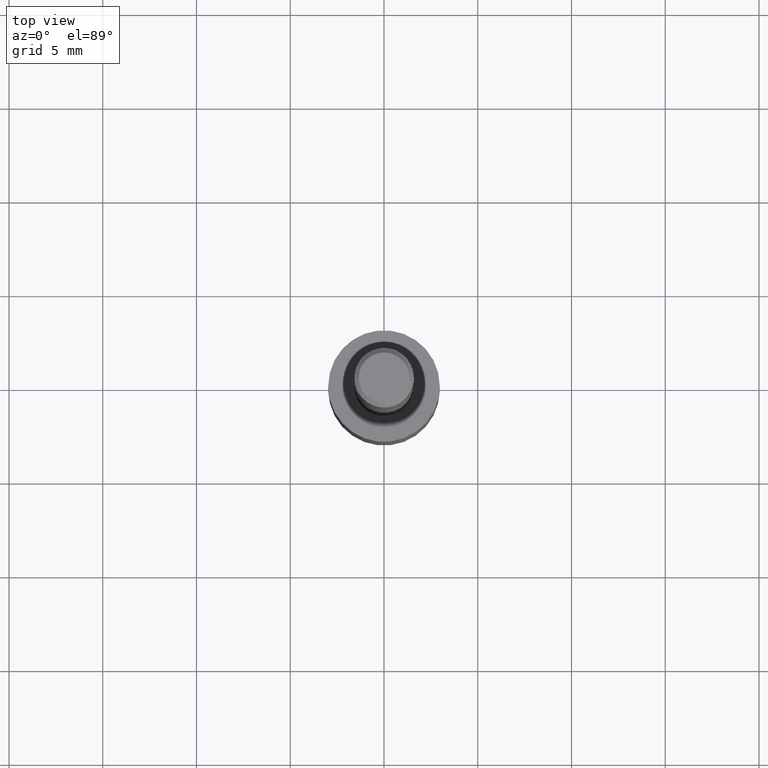
[diagram: clean part render]
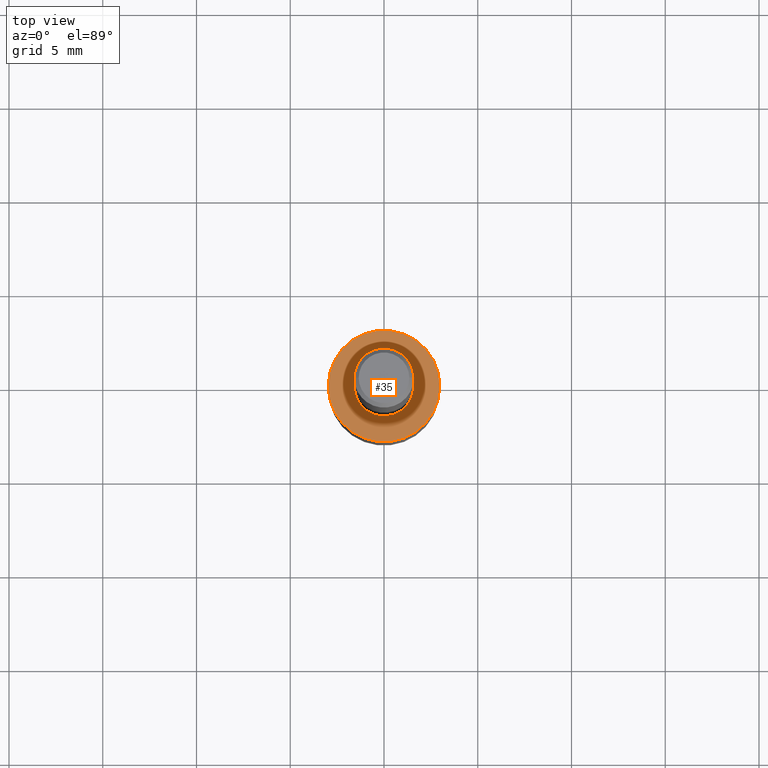
[diagram: same view with one face highlighted and labeled with its STEP entity id]
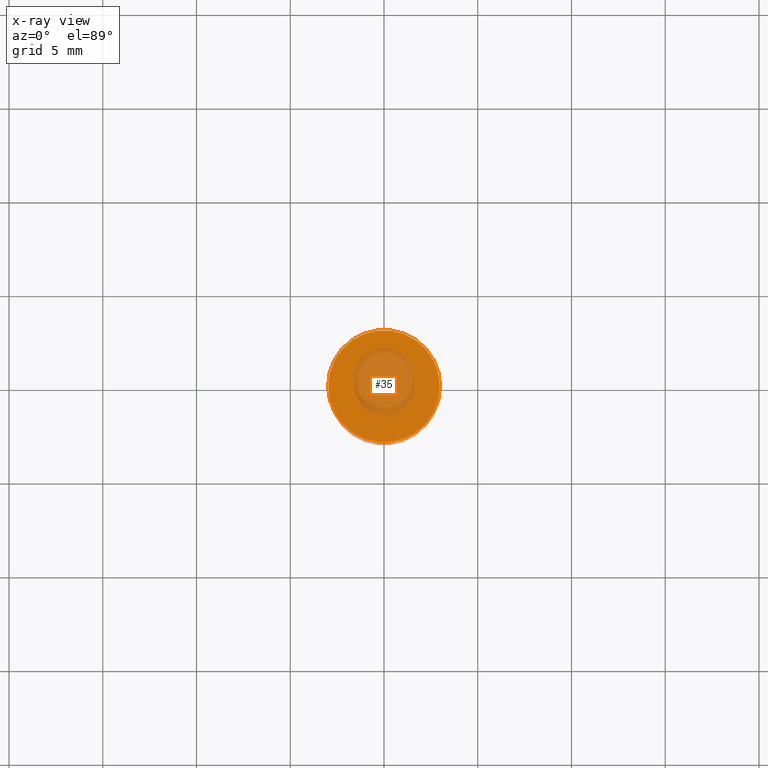
[diagram: x-ray of the same camera — body ghosted, the highlighted face saturated]
A machine part, top view. The second image highlights one B-rep face of the part: STEP entity #35.
The next image is the same camera in x-ray: the body ghosted, the highlighted face saturated — about 33% of this face is hidden behind the body in this view.
In plain terms, the highlighted planar face has unit normal (0, -0, -1).
Its self-contained STEP definition (entity closure, byte-faithful):
#8 = CARTESIAN_POINT ( 'NONE',  ( 0.1171500000000000041, -4.309535416534092526E-15, -1.000000000000000222 ) ) ;
#21 = DIRECTION ( 'NONE',  ( -2.445468806185136597E-29, 3.491481338843145583E-15, 1.000000000000000000 ) ) ;
#35 = ADVANCED_FACE ( 'NONE', ( #110 ), #227, .F. ) ;
#61 = DIRECTION ( 'NONE',  ( 2.438088387897960049E-29, -3.491481338843145188E-15, -1.000000000000000000 ) ) ;
#64 = DIRECTION ( 'NONE',  ( 1.000000000000000000, -6.982962677686266711E-15, 0.000000000000000000 ) ) ;
#94 = ORIENTED_EDGE ( 'NONE', *, *, #232, .T. ) ;
#108 = EDGE_LOOP ( 'NONE', ( #117, #94 ) ) ;
#110 = FACE_OUTER_BOUND ( 'NONE', #108, .T. ) ;
#117 = ORIENTED_EDGE ( 'NONE', *, *, #309, .T. ) ;
#128 = VERTEX_POINT ( 'NONE', #317 ) ;
#130 = CIRCLE ( 'NONE', #184, 0.1171500000000000041 ) ;
#164 = CARTESIAN_POINT ( 'NONE',  ( 3.259655429354990781E-29, -2.325519753839192376E-15, -1.000000000000000222 ) ) ;
#172 = CARTESIAN_POINT ( 'NONE',  ( 2.445468806185136877E-29, -3.491481338843145977E-15, -1.000000000000000222 ) ) ;
#173 = VERTEX_POINT ( 'NONE', #8 ) ;
#184 = AXIS2_PLACEMENT_3D ( 'NONE', #262, #21, #278 ) ;
#205 = DIRECTION ( 'NONE',  ( -1.000000000000000000, 6.982962677686265922E-15, -4.876176775795935793E-29 ) ) ;
#227 = PLANE ( 'NONE',  #307 ) ;
#232 = EDGE_CURVE ( 'NONE', #128, #173, #130, .T. ) ;
#262 = CARTESIAN_POINT ( 'NONE',  ( 2.445468806185136877E-29, -3.491481338843145977E-15, -1.000000000000000222 ) ) ;
#278 = DIRECTION ( 'NONE',  ( 1.000000000000000000, -6.982962677686266711E-15, 0.000000000000000000 ) ) ;
#290 = DIRECTION ( 'NONE',  ( -2.445468806185136597E-29, 3.491481338843145583E-15, 1.000000000000000000 ) ) ;
#293 = AXIS2_PLACEMENT_3D ( 'NONE', #172, #290, #64 ) ;
#307 = AXIS2_PLACEMENT_3D ( 'NONE', #164, #61, #205 ) ;
#309 = EDGE_CURVE ( 'NONE', #173, #128, #313, .T. ) ;
#313 = CIRCLE ( 'NONE', #293, 0.1171500000000000041 ) ;
#317 = CARTESIAN_POINT ( 'NONE',  ( -0.1171500000000000041, -3.436584638307922029E-15, -1.000000000000000222 ) ) ;